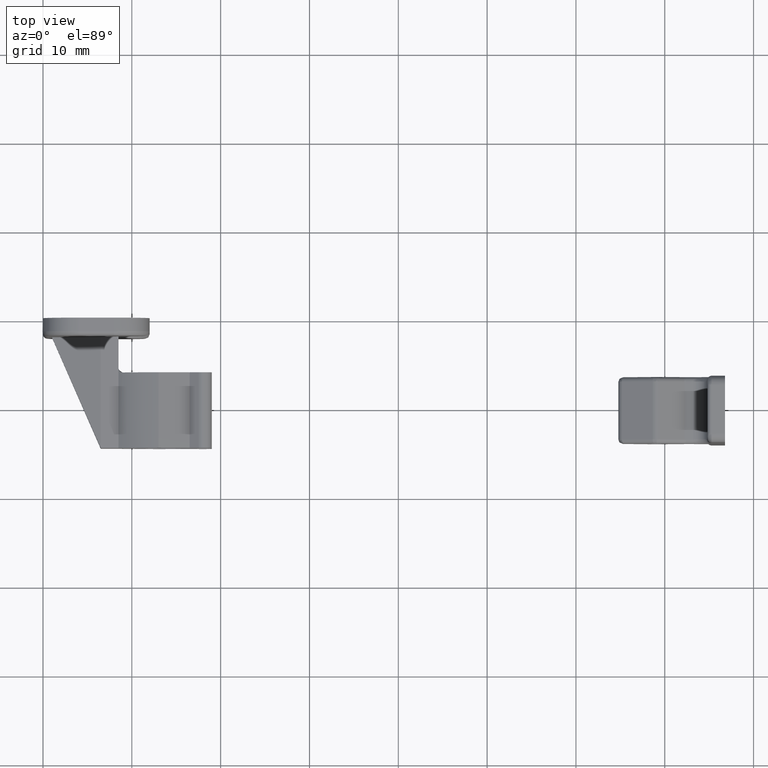
[diagram: clean part render]
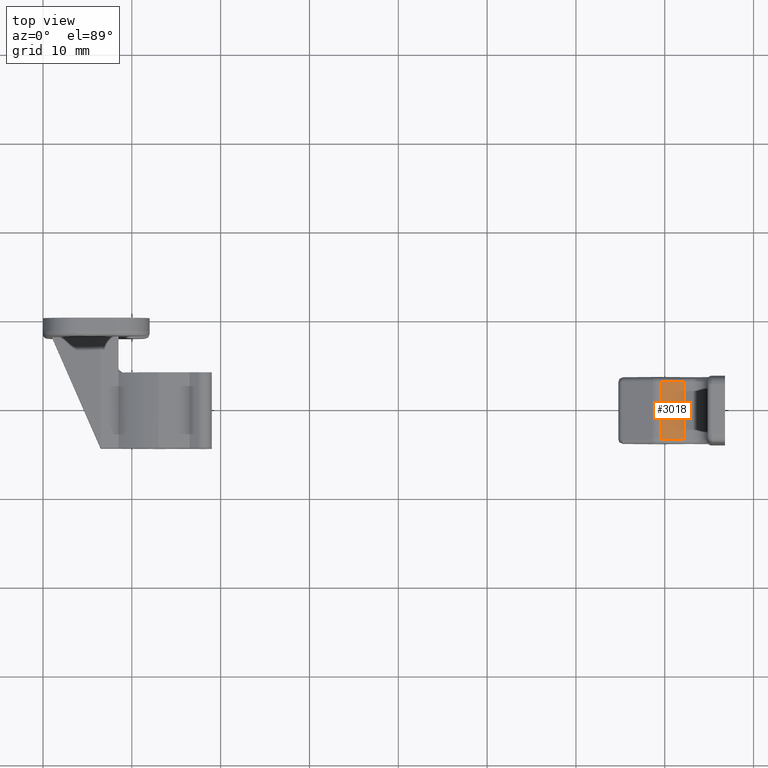
[diagram: same view with one face highlighted and labeled with its STEP entity id]
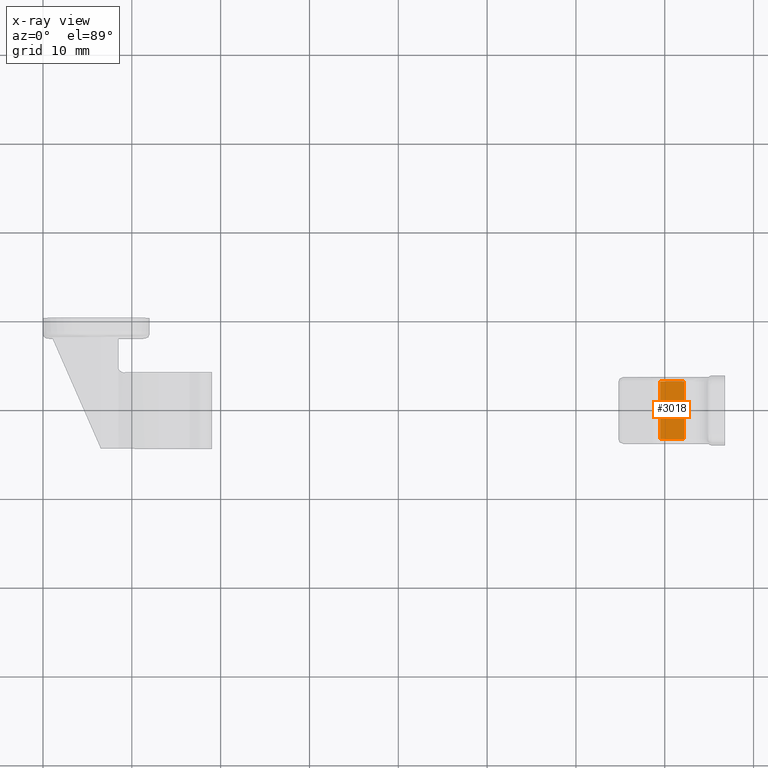
[diagram: x-ray of the same camera — body ghosted, the highlighted face saturated]
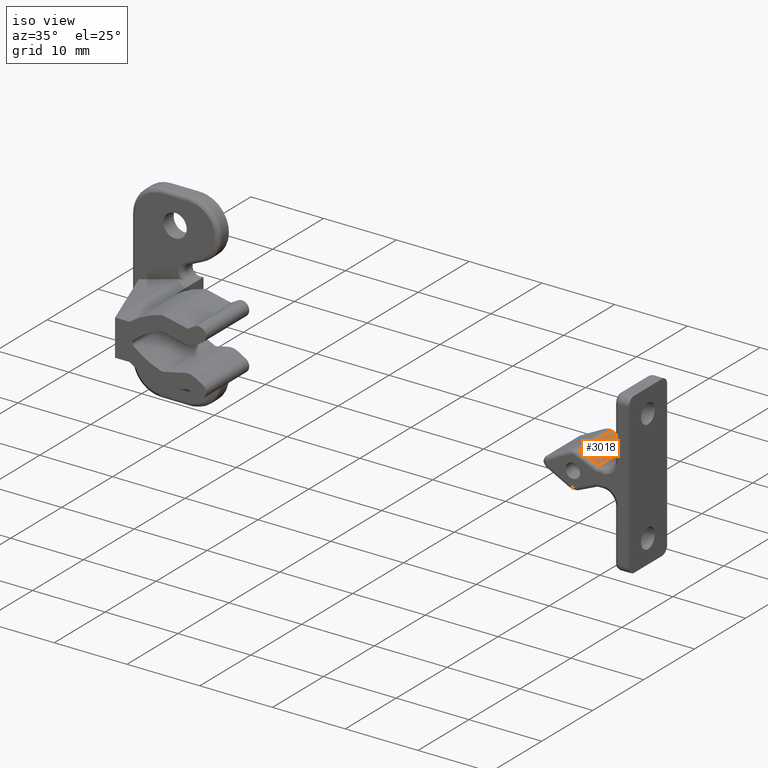
[diagram: same view with one face highlighted and labeled with its STEP entity id]
A machine part, top view. The second image highlights one B-rep face of the part: STEP entity #3018.
The next image is the same camera in x-ray: the body ghosted, the highlighted face saturated — about 0% of this face is hidden behind the body in this view.
A second angle (iso view) of the same face is appended — the face is thin or edge-on in the first view.
In plain terms, the highlighted face is a freeform B-spline surface patch.
Its self-contained STEP definition (entity closure, byte-faithful):
#719=CARTESIAN_POINT('',(69.483226249979694,-7.000000000000120,2.465707130659445));
#720=VERTEX_POINT('',#719);
#891=CARTESIAN_POINT('',(69.483226249979694,-13.500000000000000,2.465707130659445));
#892=VERTEX_POINT('',#891);
#2012=CARTESIAN_POINT('',(72.186087883199306,-7.000000000000120,1.291411532050960));
#2013=VERTEX_POINT('',#2012);
#2037=CARTESIAN_POINT('',(72.186087883199306,-7.000000000000120,1.291411532050960));
#2038=CARTESIAN_POINT('',(69.483226249979694,-7.000000000000120,2.465707130659445));
#2039=QUASI_UNIFORM_CURVE('',1,(#2037,#2038),.UNSPECIFIED.,.F.,.U.);
#2040=EDGE_CURVE('',#2013,#720,#2039,.T.);
#2152=CARTESIAN_POINT('',(72.186087883199306,-13.500000000000000,1.291411532050960));
#2153=VERTEX_POINT('',#2152);
#2175=CARTESIAN_POINT('',(72.186087883199306,-13.500000000000000,1.291411532050960));
#2176=CARTESIAN_POINT('',(72.186087883199306,-7.000000000000120,1.291411532050960));
#2177=QUASI_UNIFORM_CURVE('',1,(#2175,#2176),.UNSPECIFIED.,.F.,.U.);
#2178=EDGE_CURVE('',#2153,#2013,#2177,.T.);
#2381=CARTESIAN_POINT('',(69.483226249979694,-13.500000000000000,2.465707130659445));
#2382=CARTESIAN_POINT('',(72.186087883199306,-13.500000000000000,1.291411532050960));
#2383=QUASI_UNIFORM_CURVE('',1,(#2381,#2382),.UNSPECIFIED.,.F.,.U.);
#2384=EDGE_CURVE('',#892,#2153,#2383,.T.);
#3003=CARTESIAN_POINT('',(72.321096560671990,-13.824674987401730,1.232755145878023));
#3004=CARTESIAN_POINT('',(69.348215373449577,-13.824674987401730,2.524364472243255));
#3005=CARTESIAN_POINT('',(72.321096560671990,-6.675324838254800,1.232755145878023));
#3006=CARTESIAN_POINT('',(69.348215373449577,-6.675324838254800,2.524364472243255));
#3007=B_SPLINE_SURFACE_WITH_KNOTS('',1,1,((#3003,#3005),(#3004,#3006)),.UNSPECIFIED.,.F.,.F.,.U.,(2,2),(2,2),(0.0,3.241338798289156),(0.0,7.149350149146932),.UNSPECIFIED.);
#3008=ORIENTED_EDGE('',*,*,#2178,.T.);
#3009=ORIENTED_EDGE('',*,*,#2040,.T.);
#3010=CARTESIAN_POINT('',(69.483226249979694,-13.500000000000000,2.465707130659445));
#3011=CARTESIAN_POINT('',(69.483226249979694,-7.000000000000120,2.465707130659445));
#3012=QUASI_UNIFORM_CURVE('',1,(#3010,#3011),.UNSPECIFIED.,.F.,.U.);
#3013=EDGE_CURVE('',#892,#720,#3012,.T.);
#3014=ORIENTED_EDGE('',*,*,#3013,.F.);
#3015=ORIENTED_EDGE('',*,*,#2384,.T.);
#3016=EDGE_LOOP('',(#3008,#3009,#3014,#3015));
#3017=FACE_OUTER_BOUND('',#3016,.T.);
#3018=ADVANCED_FACE('',(#3017),#3007,.F.);